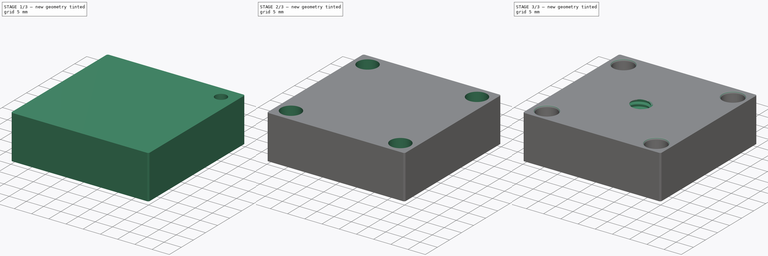
[diagram: build sequence overview — one tinted view per stage of 3, left to right]
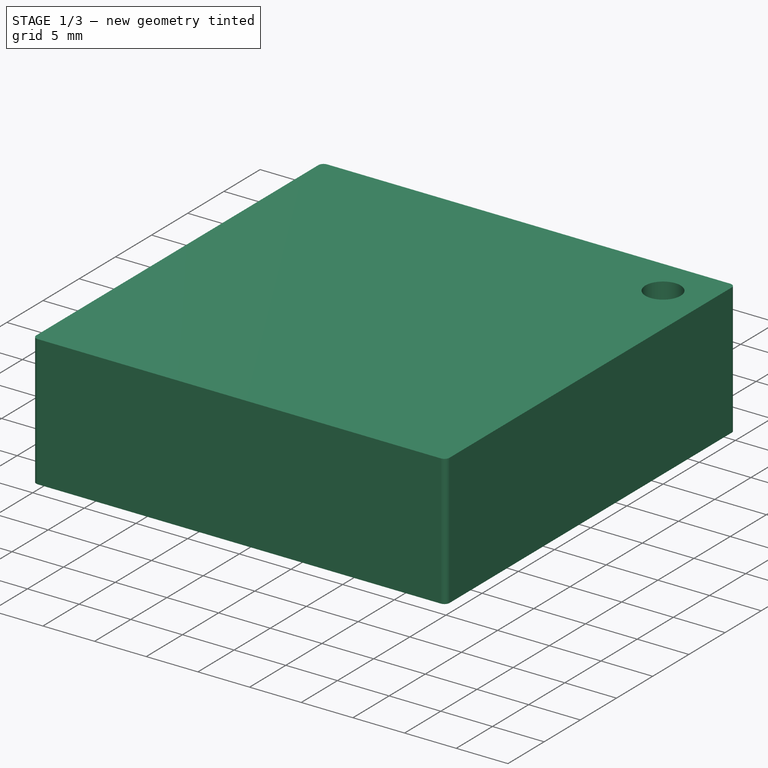
[diagram: stage 1 of 3 — iso view after this stage's code; geometry added in this stage tinted green]
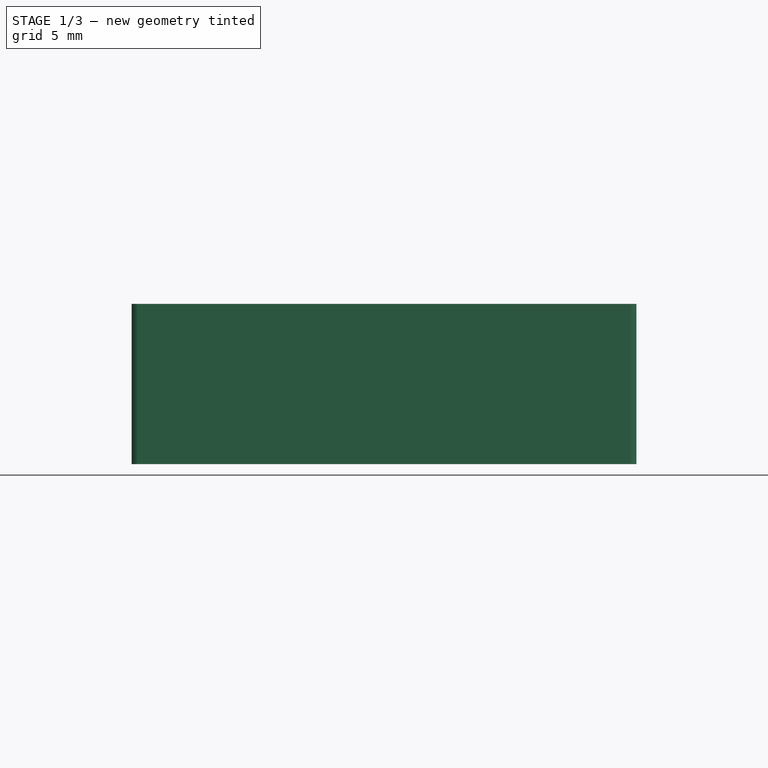
[diagram: stage 1 of 3 — front view after this stage's code; geometry added in this stage tinted green]
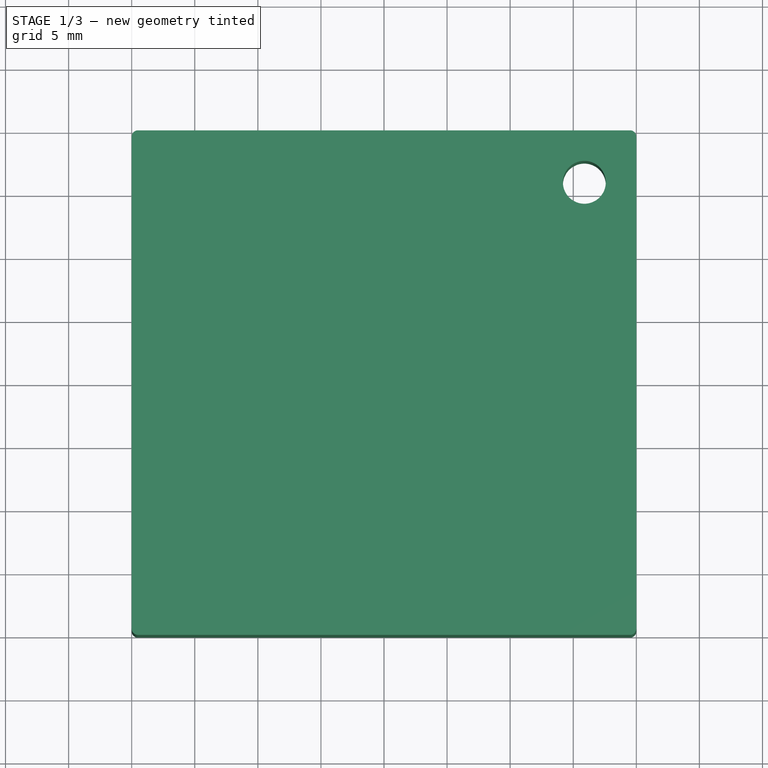
[diagram: stage 1 of 3 — top view after this stage's code; geometry added in this stage tinted green]
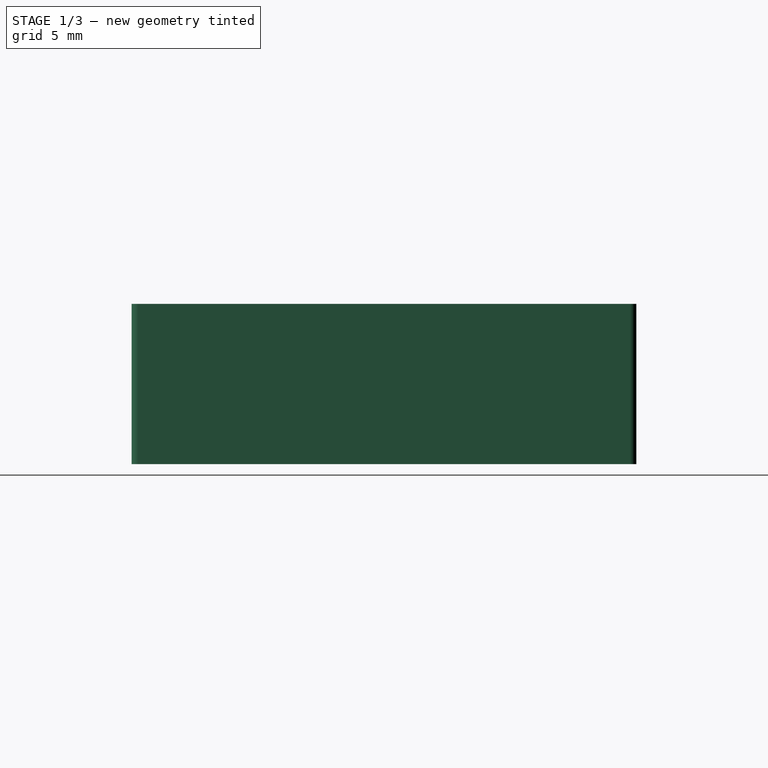
[diagram: stage 1 of 3 — right view after this stage's code; geometry added in this stage tinted green]
FCSTD DOCUMENT  (FreeCAD 1.1R44874 (Git))
Label: LD40_Adapter_Center
License: Creative Commons Attribution 4.0
objects: Sketcher::SketchObject×8, PartDesign::Pocket×4, TechDraw::DrawProjGroupItem×4, App::Point×2, PartDesign::Pad×2, PartDesign::PolarPattern×2, PartDesign::Fillet×2, PartDesign::Hole×2, PartDesign::Body×2, TechDraw::DrawSVGTemplate×1, TechDraw::DrawViewSection×1, TechDraw::DrawViewDimension×1, TechDraw::DrawProjGroup×1, TechDraw::DrawPage×1, PartDesign::LinearPattern×1
note: 56 computed .brp shape members not serialized (recipe doc carries the construction recipe); baked Part::Feature solids carry a one-line shape summary decoded from their .brp

FEATURE [App::Point] Origin001
  Role = Origin
FEATURE [Sketcher::SketchObject] Sketch
  ArcFitTolerance = 1e-06
  AttachmentSupport = -> [Origin]
  ExternalTypes = [0]
  FullyConstrained = true
  MakeInternals = false
  MapMode = 5
  _ExternalGeoVersion = 1
  sketch-geometry (10):
    g0: LineSegment StartX=-20 StartY=19.5 StartZ=0 EndX=-20 EndY=-19.5 EndZ=0
    g1: LineSegment StartX=-19.5 StartY=-20 StartZ=0 EndX=19.5 EndY=-20 EndZ=0
    g2: LineSegment StartX=20 StartY=-19.5 StartZ=0 EndX=20 EndY=19.5 EndZ=0
    g3: LineSegment StartX=19.5 StartY=20 StartZ=0 EndX=-19.5 EndY=20 EndZ=0
    g4: ArcOfCircle CenterX=-19.5 CenterY=19.5 CenterZ=0 NormalX=0 NormalY=0 NormalZ=1 AngleXU=0 Radius=0.5 StartAngle=1.5708 EndAngle=3.14159
    g5: ArcOfCircle CenterX=-19.5 CenterY=-19.5 CenterZ=0 NormalX=0 NormalY=0 NormalZ=1 AngleXU=0 Radius=0.5 StartAngle=3.14159 EndAngle=4.71239
    g6: ArcOfCircle CenterX=19.5 CenterY=-19.5 CenterZ=0 NormalX=0 NormalY=0 NormalZ=1 AngleXU=0 Radius=0.5 StartAngle=4.71239 EndAngle=6.28319
    g7: ArcOfCircle CenterX=19.5 CenterY=19.5 CenterZ=0 NormalX=0 NormalY=0 NormalZ=1 AngleXU=0 Radius=0.5 StartAngle=1.1e-15 EndAngle=1.5708
    g8: GeomPoint [constr] X=-20 Y=20 Z=0
    g9: GeomPoint [constr] X=20 Y=-20 Z=0
  constraints (22):
    c: Tangent(g0,g4) = -1.5708
    c: Tangent(g0,g5) = -1.5708
    c: Tangent(g1,g5) = -1.5708
    c: Tangent(g1,g6) = -1.5708
    c: Tangent(g2,g6) = -1.5708
    c: Tangent(g2,g7) = -1.5708
    c: Tangent(g3,g7) = -1.5708
    c: Tangent(g3,g4) = -1.5708
    c: Vertical(g0)
    c: Vertical(g2)
    c: Horizontal(g1)
    c: Horizontal(g3)
    c: Equal(g5,g6)
    c: PointOnObject(g8,g0)
    c: PointOnObject(g8,g3)
    c: PointOnObject(g9,g1)
    c: PointOnObject(g9,g2)
    c: DistanceX(g0,g2) = 40
    c: DistanceY(g1,g3) = 40
    c: Diameter(g7) = 1
    c: Symmetric(g3,g1,g-1)
    c: Symmetric(g0,g2,g-2)
FEATURE [PartDesign::Pad] Pad
  Direction = (0,0,1)
  Length = 12.7
  Length2 = 10
  Profile = -> Sketch
  ReferenceAxis = -> Sketch [N_Axis]
  Refine = true
  Reversed = true
  SideType = 0
  Suppressed = false
  Type = 0
  Type2 = 0
FEATURE [Sketcher::SketchObject] Sketch001
  ArcFitTolerance = 1e-06
  AttachmentSupport = -> [Origin]
  ExternalTypes = [0]
  FullyConstrained = true
  MakeInternals = false
  MapMode = 5
  _ExternalGeoVersion = 1
  sketch-geometry (1):
    g0: Circle CenterX=15.88 CenterY=15.88 CenterZ=0 NormalX=0 NormalY=0 NormalZ=1 AngleXU=0 Radius=1.7
  constraints (3):
    c: DistanceX(g0) = 15.88
    c: DistanceY(g0) = 15.88
    c: Diameter(g0) = 3.4
FEATURE [PartDesign::Pocket] Pocket
  BaseFeature = -> Pad
  Direction = (0,0,-1)
  Length = 5
  Length2 = 5
  Profile = -> Sketch001
  ReferenceAxis = -> Sketch001 [N_Axis]
  Refine = true
  SideType = 0
  Suppressed = false
  Type = 1
  Type2 = 0
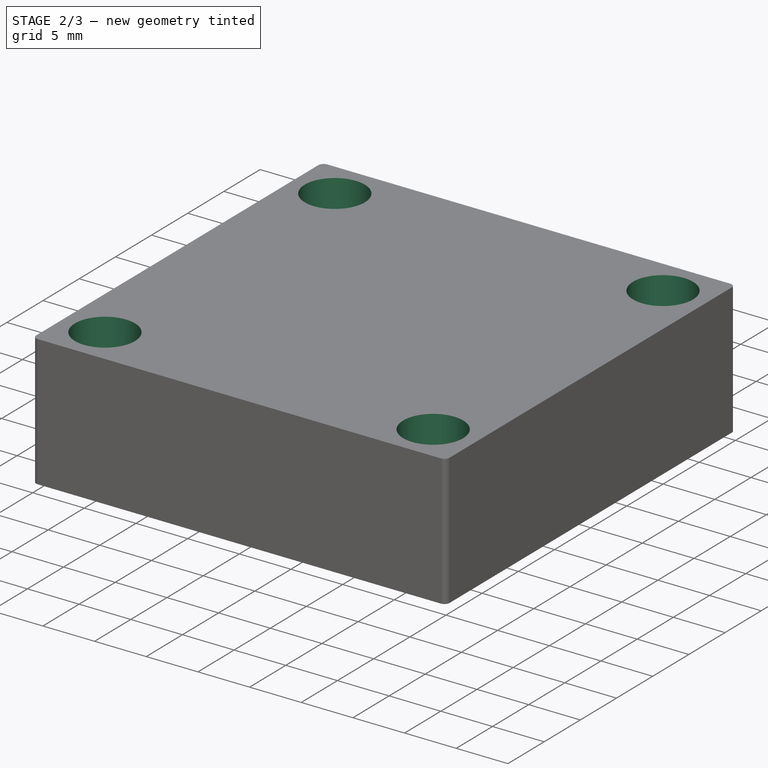
[diagram: stage 2 of 3 — iso view after this stage's code; geometry added in this stage tinted green]
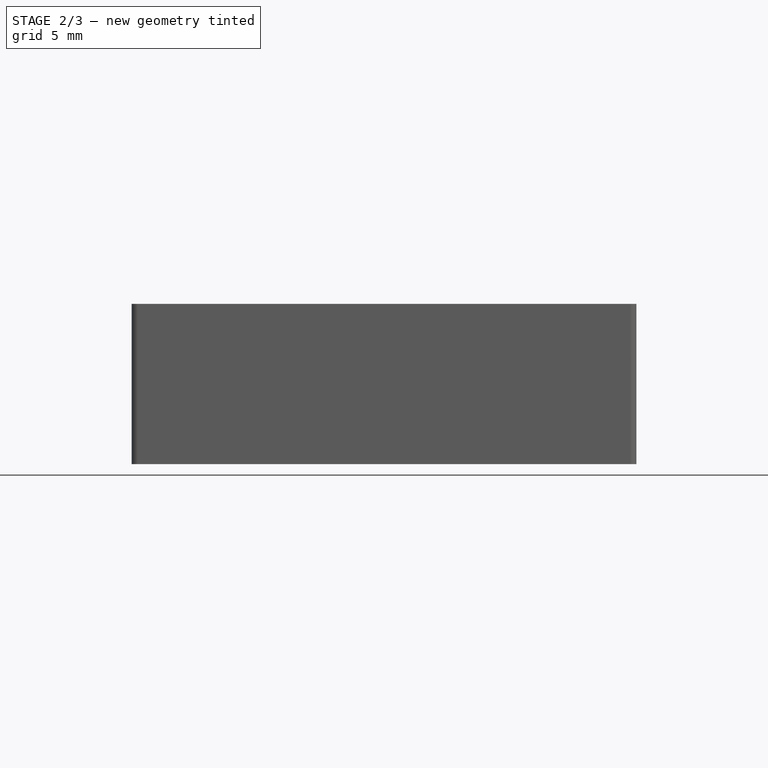
[diagram: stage 2 of 3 — front view after this stage's code; geometry added in this stage tinted green]
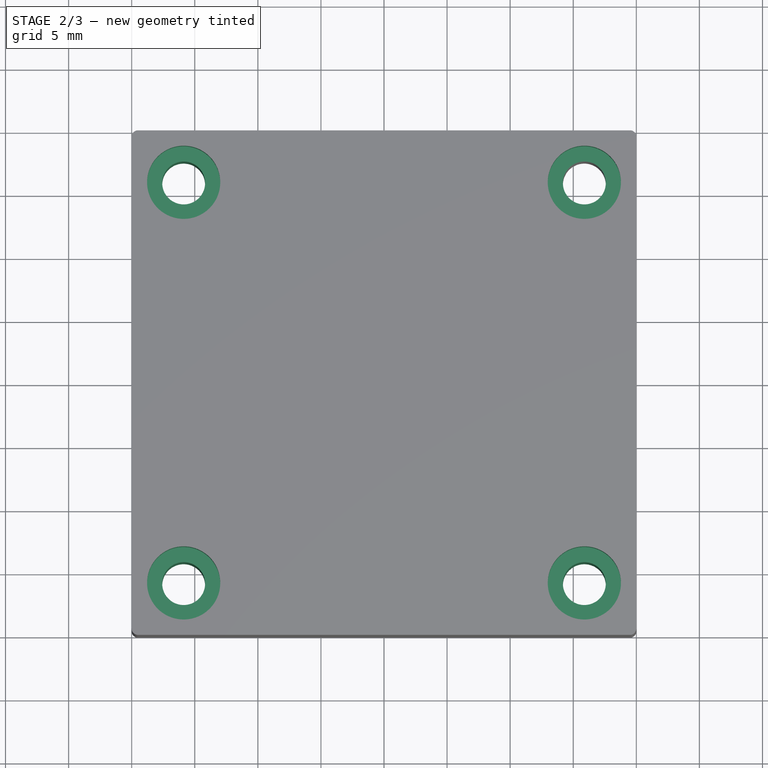
[diagram: stage 2 of 3 — top view after this stage's code; geometry added in this stage tinted green]
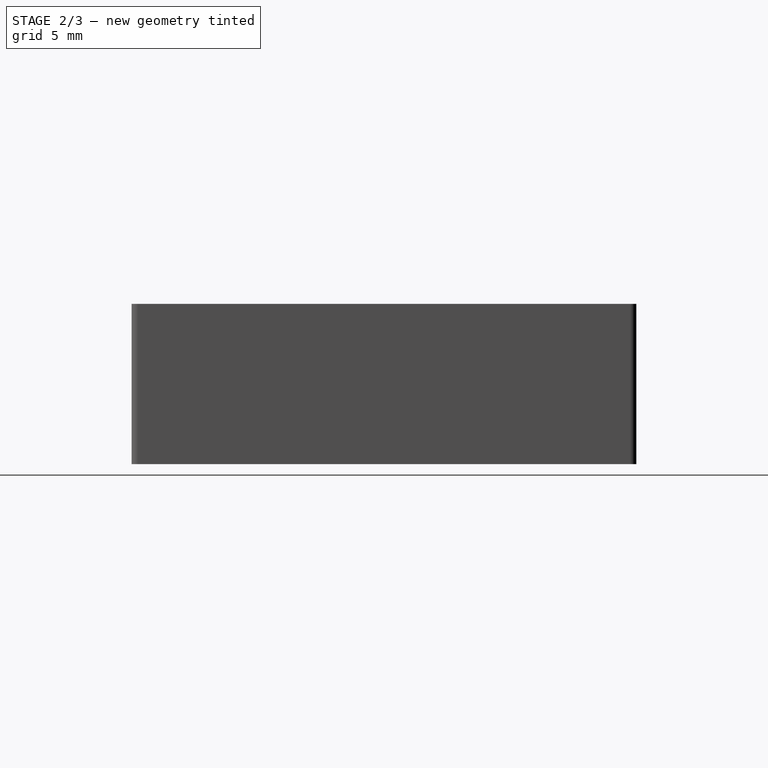
[diagram: stage 2 of 3 — right view after this stage's code; geometry added in this stage tinted green]
FEATURE [Sketcher::SketchObject] Sketch002
  ArcFitTolerance = 1e-06
  AttachmentSupport = -> [Origin]
  ExternalTypes = [0]
  FullyConstrained = true
  MakeInternals = false
  MapMode = 5
  _ExternalGeoVersion = 1
  sketch-geometry (1):
    g0: Circle CenterX=15.88 CenterY=15.88 CenterZ=0 NormalX=0 NormalY=0 NormalZ=1 AngleXU=0 Radius=2.9
  constraints (3):
    c: Diameter(g0) = 5.8
    c: DistanceX(g0) = 15.88
    c: DistanceY(g0) = 15.88
FEATURE [PartDesign::Pocket] Pocket001
  BaseFeature = -> Pocket
  Direction = (0,0,-1)
  Length = 3
  Length2 = 5
  Profile = -> Sketch002
  ReferenceAxis = -> Sketch002 [N_Axis]
  Refine = true
  SideType = 0
  Suppressed = false
  Type = 0
  Type2 = 0
FEATURE [PartDesign::PolarPattern] PolarPattern
  Angle = 360
  Axis = -> Sketch002 [N_Axis]
  BaseFeature = -> Pocket001
  Mode = 0
  Occurrences = 4
  Offset = 120
  Originals = -> [Pocket001,Pocket]
  Refine = true
  SpacingPattern = [0]
  Spacings = [-1,-1,-1]
  Suppressed = false
  TransformMode = 0
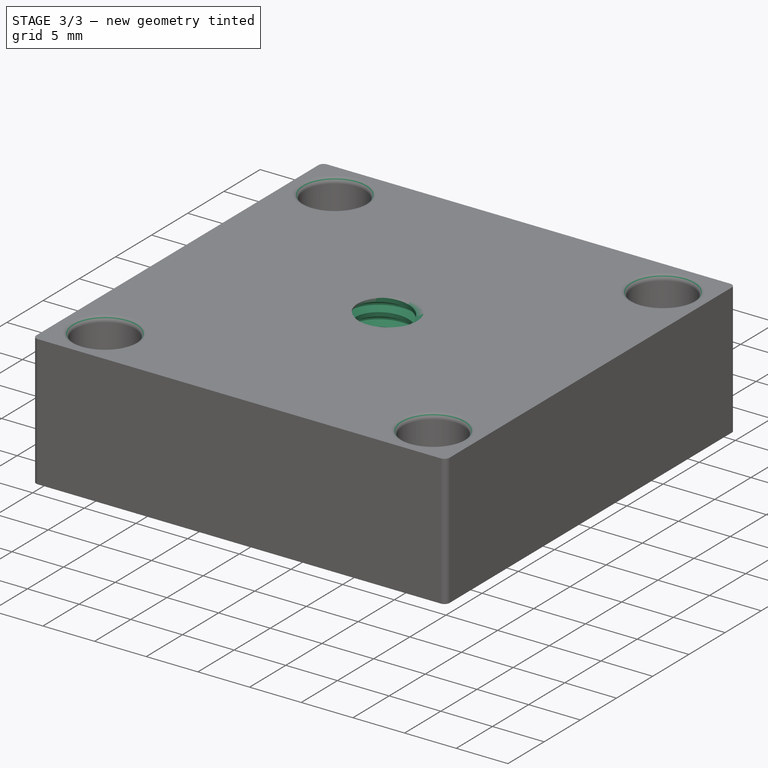
[diagram: stage 3 of 3 — iso view after this stage's code; geometry added in this stage tinted green]
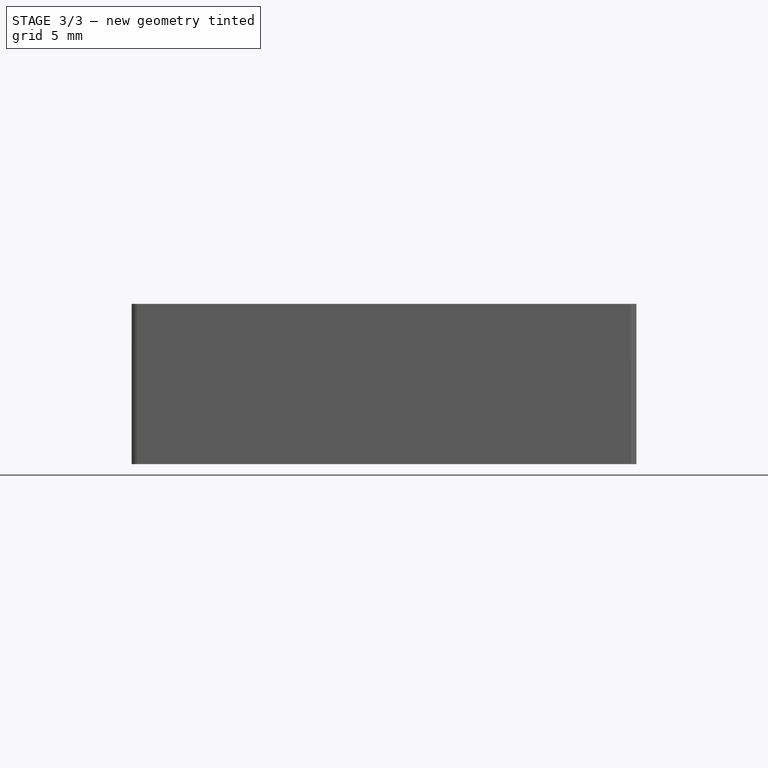
[diagram: stage 3 of 3 — front view after this stage's code; geometry added in this stage tinted green]
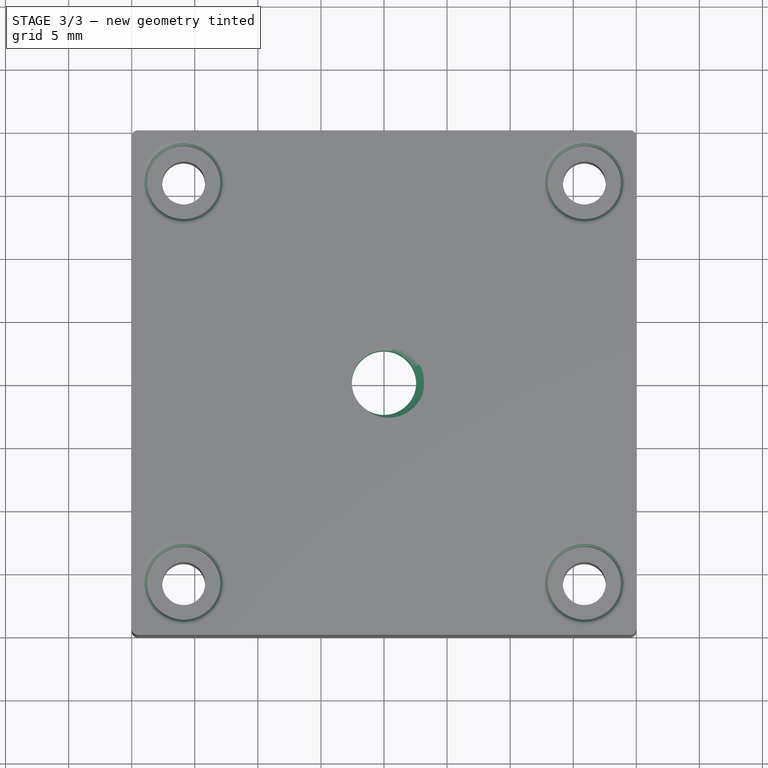
[diagram: stage 3 of 3 — top view after this stage's code; geometry added in this stage tinted green]
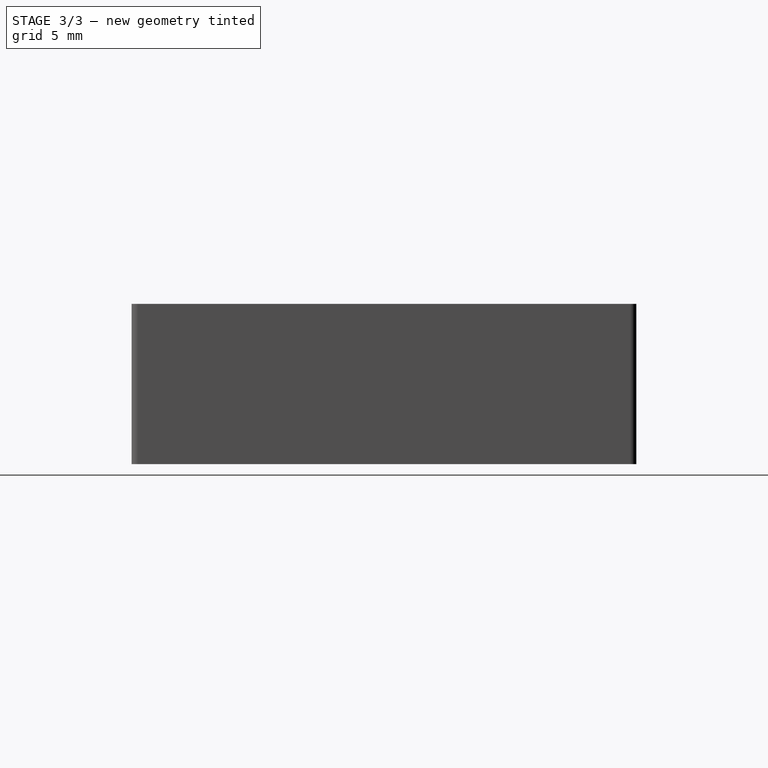
[diagram: stage 3 of 3 — right view after this stage's code; geometry added in this stage tinted green]
FEATURE [PartDesign::Fillet] Fillet
  Base = -> PolarPattern [Edge16,Edge18,Edge19,Edge17]
  BaseFeature = -> PolarPattern
  Radius = 0.5
  Refine = true
  SupportTransform = false
  Suppressed = false
  UseAllEdges = false
FEATURE [Sketcher::SketchObject] Sketch003
  ArcFitTolerance = 1e-06
  AttachmentSupport = -> [Fillet]
  ExternalTypes = [0]
  FullyConstrained = true
  MakeInternals = false
  MapMode = 5
  Placement = pos=(0,0,-12.7) rot=(1,0,0;3.14159rad)
  _ExternalGeoVersion = 1
  sketch-geometry (1):
    g0: Circle CenterX=0 CenterY=0 CenterZ=0 NormalX=0 NormalY=0 NormalZ=1 AngleXU=0 Radius=3.175
  constraints (2):
    c: Coincident(g0,g-1)
    c: Diameter(g0) = 6.35
FEATURE [PartDesign::Hole] Hole
  BaseFeature = -> Fillet
  BaseProfileType = 7
  CustomThreadClearance = 0
  Depth = 25
  DepthType = 0
  Diameter = 5.1
  DrillForDepth = false
  DrillPoint = 0
  DrillPointAngle = 118
  HoleCutCountersinkAngle = 90
  HoleCutCustomValues = false
  HoleCutDepth = 6.5
  HoleCutDiameter = 11.36
  HoleCutType = 1
  ModelThread = true
  Profile = -> Sketch003
  Refine = true
  Suppressed = false
  Tapered = false
  TaperedAngle = 90
  ThreadClass = 0
  ThreadDepth = 25
  ThreadDepthType = 0
  ThreadDiameter = 6.35
  ThreadDirection = 0
  ThreadFit = 0
  ThreadSize = 9
  ThreadType = 3
  Threaded = true
  UseCustomThreadClearance = false
FEATURE [PartDesign::Body] Body  label="Top"
  AllowCompound = false
  Group = -> [Sketch,Pad,Sketch001,Pocket,Sketch002,Pocket001,PolarPattern,Fillet,Sketch003,Hole]
  Origin = -> Origin
  Tip = -> Hole
FEATURE [TechDraw::DrawSVGTemplate] Template
  Height = 210
  Orientation = 1
  Template = <path>
  Width = 297
FEATURE [TechDraw::DrawProjGroupItem] View
  CoarseView = false
  Direction = (0,-1,0)
  Focus = 100
  HardHidden = false
  IsoCount = 0
  IsoHidden = false
  IsoVisible = false
  LockPosition = false
  Perspective = false
  Rotation = 0
  RotationVector = (1,0,0)
  ScaleType = 0
  ScrubCount = 1
  SeamHidden = false
  SeamVisible = false
  SmoothHidden = false
  SmoothVisible = true
  Source = -> [Body]
  Type = 0
  X = 151.263
  XDirection = (1,0,0)
  Y = 104.546
FEATURE [TechDraw::DrawViewSection] SectionView  label="Section  - "
  BaseView = -> View
  CoarseView = false
  CutSurfaceDisplay = 2
  Direction = (1,0,0)
  FileGeomPattern = <path>
  FileHatchPattern = <path>
  Focus = 100
  FuseBeforeCut = false
  HardHidden = false
  HatchOffset = (0,0,0)
  HatchRotation = 0
  HatchScale = 1
  IsoCount = 0
  IsoHidden = false
  IsoVisible = false
  LockPosition = false
  NameGeomPattern = Diamond
  Perspective = false
  Rotation = 90
  ScaleType = 0
  ScrubCount = 1
  SeamHidden = false
  SeamVisible = false
  SectionDirection = 4
  SectionLineStretch = 1
  SectionNormal = (1,0,0)
  SectionOrigin = (0,0,-6.35)
  SmoothHidden = false
  SmoothVisible = true
  Source = -> [Body]
  TrimAfterCut = false
  UsePreviousCut = false
  X = 151.475
  XDirection = (0,0,1)
  Y = 104.021
FEATURE [TechDraw::DrawViewDimension] Dimension001
  AngleOverride = true
  Arbitrary = true
  ArbitraryTolerances = false
  BoxCorners = (2) [(-20,-6.35071,-1e-07),(20,6.35,1e-07)]
  EqualTolerance = true
  ExtensionAngle = 90
  FormatSpec = 1/4"-20
  FormatSpecOverTolerance = %+.2w
  FormatSpecUnderTolerance = %+.2w
  Inverted = false
  LineAngle = 180
  LockPosition = false
  MeasureType = 1
  OverTolerance = 0
  References2D = -> [SectionView]
  Rotation = 0
  ScaleType = 0
  ShowUnits = false
  TheoreticalExact = false
  Type = 0
  UnderTolerance = 0
  UseActualArea = true
  X = -26.0119
  Y = 25.9763
FEATURE [TechDraw::DrawProjGroupItem] View001  label="Front"
  CoarseView = false
  Direction = (0,0,1)
  Focus = 100
  HardHidden = false
  IsoCount = 0
  IsoHidden = false
  IsoVisible = false
  LockPosition = true
  Perspective = false
  Rotation = 0
  RotationVector = (1,0,0)
  ScaleType = 2
  ScrubCount = 1
  SeamHidden = false
  SeamVisible = false
  SmoothHidden = false
  SmoothVisible = true
  Source = -> [Body]
  Type = 0
  X = 0
  XDirection = (1,0,0)
  Y = 0
FEATURE [TechDraw::DrawProjGroupItem] ProjItem  label="Left"
  CoarseView = false
  Direction = (-1,0,1e-16)
  Focus = 100
  HardHidden = false
  IsoCount = 0
  IsoHidden = false
  IsoVisible = false
  LockPosition = false
  Perspective = false
  Rotation = 0
  RotationVector = (1,0,0)
  ScaleType = 0
  ScrubCount = 1
  SeamHidden = false
  SeamVisible = false
  SmoothHidden = false
  SmoothVisible = true
  Source = -> [Body]
  Type = 1
  X = 68.6323
  XDirection = (1e-16,0,1)
  Y = 0
FEATURE [TechDraw::DrawProjGroupItem] ProjItem001  label="FrontTopLeft"
  CoarseView = false
  Direction = (-0.57735,0.57735,0.57735)
  Focus = 100
  HardHidden = false
  IsoCount = 0
  IsoHidden = false
  IsoVisible = false
  LockPosition = false
  Perspective = false
  Rotation = 0
  RotationVector = (1,0,0)
  ScaleType = 0
  ScrubCount = 1
  SeamHidden = false
  SeamVisible = false
  SmoothHidden = false
  SmoothVisible = true
  Source = -> [Body]
  Type = 6
  X = 68.6323
  XDirection = (0.707107,0,0.707107)
  Y = -76.9313
FEATURE [TechDraw::DrawProjGroup] ProjGroup
  Anchor = -> View001
  AutoDistribute = true
  LockPosition = false
  ProjectionType = 0
  Rotation = 0
  ScaleType = 0
  Source = -> [Body]
  Views = -> [View001,ProjItem,ProjItem001]
  X = 149.359
  Y = 179.325
  spacingX = 30
  spacingY = 30
FEATURE [TechDraw::DrawPage] Page
  KeepUpdated = true
  NextBalloonIndex = 1
  ProjectionType = 0
  Template = -> Template
  Views = -> [Dimension001,View,SectionView,ProjGroup]
FEATURE [App::Point] Origin003
  Role = Origin
FEATURE [Sketcher::SketchObject] Sketch004
  ArcFitTolerance = 1e-06
  AttachmentSupport = -> [Origin002]
  ExternalTypes = [0]
  FullyConstrained = true
  MakeInternals = false
  MapMode = 5
  _ExternalGeoVersion = 1
  sketch-geometry (10):
    g0: LineSegment StartX=-40 StartY=19.5 StartZ=0 EndX=-40 EndY=-19.5 EndZ=0
    g1: LineSegment StartX=-39.5 StartY=-20 StartZ=0 EndX=39.5 EndY=-20 EndZ=0
    g2: LineSegment StartX=40 StartY=-19.5 StartZ=0 EndX=40 EndY=19.5 EndZ=0
    g3: LineSegment StartX=39.5 StartY=20 StartZ=0 EndX=-39.5 EndY=20 EndZ=0
    g4: ArcOfCircle CenterX=-39.5 CenterY=19.5 CenterZ=0 NormalX=0 NormalY=0 NormalZ=1 AngleXU=0 Radius=0.5 StartAngle=1.5708 EndAngle=3.14159
    g5: ArcOfCircle CenterX=-39.5 CenterY=-19.5 CenterZ=0 NormalX=0 NormalY=0 NormalZ=1 AngleXU=0 Radius=0.5 StartAngle=3.14159 EndAngle=4.71239
    g6: ArcOfCircle CenterX=39.5 CenterY=-19.5 CenterZ=0 NormalX=0 NormalY=0 NormalZ=1 AngleXU=0 Radius=0.5 StartAngle=4.71239 EndAngle=6.28319
    g7: ArcOfCircle CenterX=39.5 CenterY=19.5 CenterZ=0 NormalX=0 NormalY=0 NormalZ=1 AngleXU=0 Radius=0.5 StartAngle=-6.057e-13 EndAngle=1.5708
    g8: GeomPoint [constr] X=-40 Y=20 Z=0
    g9: GeomPoint [constr] X=40 Y=-20 Z=0
  constraints (22):
    c: Tangent(g0,g4) = -1.5708
    c: Tangent(g0,g5) = -1.5708
    c: Tangent(g1,g5) = -1.5708
    c: Tangent(g1,g6) = -1.5708
    c: Tangent(g2,g6) = -1.5708
    c: Tangent(g2,g7) = -1.5708
    c: Tangent(g3,g7) = -1.5708
    c: Tangent(g3,g4) = -1.5708
    c: Vertical(g0)
    c: Vertical(g2)
    c: Horizontal(g1)
    c: Horizontal(g3)
    c: Equal(g5,g6)
    c: PointOnObject(g8,g0)
    c: PointOnObject(g8,g3)
    c: PointOnObject(g9,g1)
    c: PointOnObject(g9,g2)
    c: DistanceX(g0,g2) = 80
    c: DistanceY(g1,g3) = 40
    c: Diameter(g7) = 1
    c: Symmetric(g3,g1,g-1)
    c: Symmetric(g0,g2,g-2)
FEATURE [PartDesign::Pad] Pad001
  Direction = (0,0,1)
  Length = 12.7
  Length2 = 10
  Profile = -> Sketch004
  ReferenceAxis = -> Sketch004 [N_Axis]
  Refine = true
  Reversed = true
  SideType = 0
  Suppressed = false
  Type = 0
  Type2 = 0
FEATURE [Sketcher::SketchObject] Sketch005
  ArcFitTolerance = 1e-06
  AttachmentSupport = -> [Origin002]
  ExternalTypes = [0]
  FullyConstrained = true
  MakeInternals = false
  MapMode = 5
  _ExternalGeoVersion = 1
  sketch-geometry (1):
    g0: Circle CenterX=15.88 CenterY=15.88 CenterZ=0 NormalX=0 NormalY=0 NormalZ=1 AngleXU=0 Radius=1.7
  constraints (3):
    c: DistanceX(g0) = 15.88
    c: DistanceY(g0) = 15.88
    c: Diameter(g0) = 3.4
FEATURE [PartDesign::Pocket] Pocket002
  BaseFeature = -> Pad001
  Direction = (0,0,-1)
  Length = 5
  Length2 = 5
  Profile = -> Sketch005
  ReferenceAxis = -> Sketch005 [N_Axis]
  Refine = true
  SideType = 0
  Suppressed = false
  Type = 1
  Type2 = 0
FEATURE [Sketcher::SketchObject] Sketch006
  ArcFitTolerance = 1e-06
  AttachmentSupport = -> [Origin002]
  ExternalTypes = [0]
  FullyConstrained = true
  MakeInternals = false
  MapMode = 5
  _ExternalGeoVersion = 1
  sketch-geometry (1):
    g0: Circle CenterX=15.88 CenterY=15.88 CenterZ=0 NormalX=0 NormalY=0 NormalZ=1 AngleXU=0 Radius=2.9
  constraints (3):
    c: Diameter(g0) = 5.8
    c: DistanceX(g0) = 15.88
    c: DistanceY(g0) = 15.88
FEATURE [PartDesign::Pocket] Pocket003
  BaseFeature = -> Pocket002
  Direction = (0,0,-1)
  Length = 3
  Length2 = 5
  Profile = -> Sketch006
  ReferenceAxis = -> Sketch006 [N_Axis]
  Refine = true
  SideType = 0
  Suppressed = false
  Type = 0
  Type2 = 0
FEATURE [PartDesign::PolarPattern] PolarPattern001
  Angle = 360
  Axis = -> Sketch006 [N_Axis]
  BaseFeature = -> Pocket003
  Mode = 0
  Occurrences = 4
  Offset = 120
  Originals = -> [Pocket003,Pocket002]
  Refine = true
  SpacingPattern = [0]
  Spacings = [-1,-1,-1]
  Suppressed = false
  TransformMode = 0
FEATURE [PartDesign::Fillet] Fillet001
  Base = -> PolarPattern001 [Edge16,Edge18,Edge19,Edge17]
  BaseFeature = -> PolarPattern001
  Radius = 0.5
  Refine = true
  SupportTransform = false
  Suppressed = false
  UseAllEdges = false
FEATURE [Sketcher::SketchObject] Sketch007
  ArcFitTolerance = 1e-06
  AttachmentSupport = -> [Fillet001]
  ExternalTypes = [0]
  FullyConstrained = true
  MakeInternals = false
  MapMode = 5
  Placement = pos=(0,0,-12.7) rot=(1,0,0;3.14159rad)
  _ExternalGeoVersion = 1
  sketch-geometry (1):
    g0: Circle CenterX=-25.4 CenterY=0 CenterZ=0 NormalX=0 NormalY=0 NormalZ=1 AngleXU=0 Radius=3.175
  constraints (3):
    c: Diameter(g0) = 6.35
    c: DistanceX(g0) = -25.4
    c: PointOnObject(g0,g-1)
FEATURE [PartDesign::Hole] Hole001
  BaseFeature = -> Fillet001
  BaseProfileType = 7
  CustomThreadClearance = 0
  Depth = 25
  DepthType = 0
  Diameter = 7.1
  DrillForDepth = false
  DrillPoint = 0
  DrillPointAngle = 118
  HoleCutCountersinkAngle = 90
  HoleCutCustomValues = false
  HoleCutDepth = 6.5
  HoleCutDiameter = 11.36
  HoleCutType = 1
  ModelThread = false
  Profile = -> Sketch007
  Refine = true
  Suppressed = false
  Tapered = false
  TaperedAngle = 90
  ThreadClass = 0
  ThreadDepth = 25
  ThreadDepthType = 0
  ThreadDiameter = 6.35
  ThreadDirection = 0
  ThreadFit = 0
  ThreadSize = 9
  ThreadType = 3
  Threaded = false
  UseCustomThreadClearance = false
FEATURE [PartDesign::LinearPattern] LinearPattern
  BaseFeature = -> Hole001
  Direction = -> Sketch007 [H_Axis]
  Direction2 = -> Sketch007 [V_Axis]
  Length = 50.8
  Length2 = 25.4
  Mode = 1
  Mode2 = 0
  Occurrences = 3
  Occurrences2 = 1
  Offset = 25.4
  Offset2 = 25.4
  Originals = -> [Hole001]
  Refine = true
  Reversed2 = false
  SpacingPattern = [0]
  SpacingPattern2 = [0]
  Spacings = [-1,-1]
  Suppressed = false
  TransformMode = 0
FEATURE [PartDesign::Body] Body001  label="Bottom"
  AllowCompound = false
  Group = -> [Sketch004,Pad001,Sketch005,Pocket002,Sketch006,Pocket003,PolarPattern001,Fillet001,Sketch007,Hole001,LinearPattern]
  Origin = -> Origin002
  Tip = -> LinearPattern
note: 3 file-system paths scrubbed to <path> (originals preserved in the JSON sidecar)
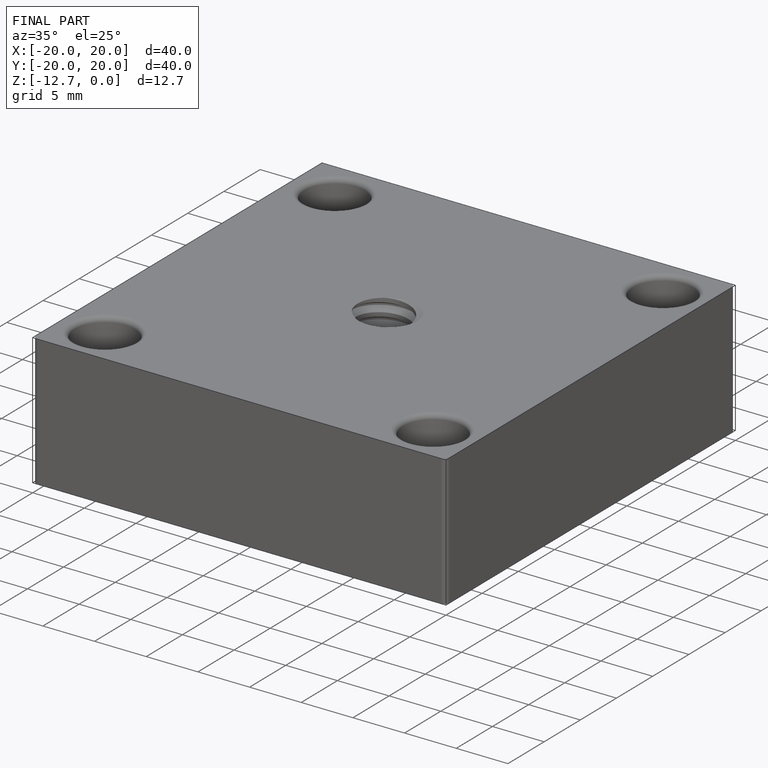
[diagram: finished part — iso view with bounding-box wireframe]
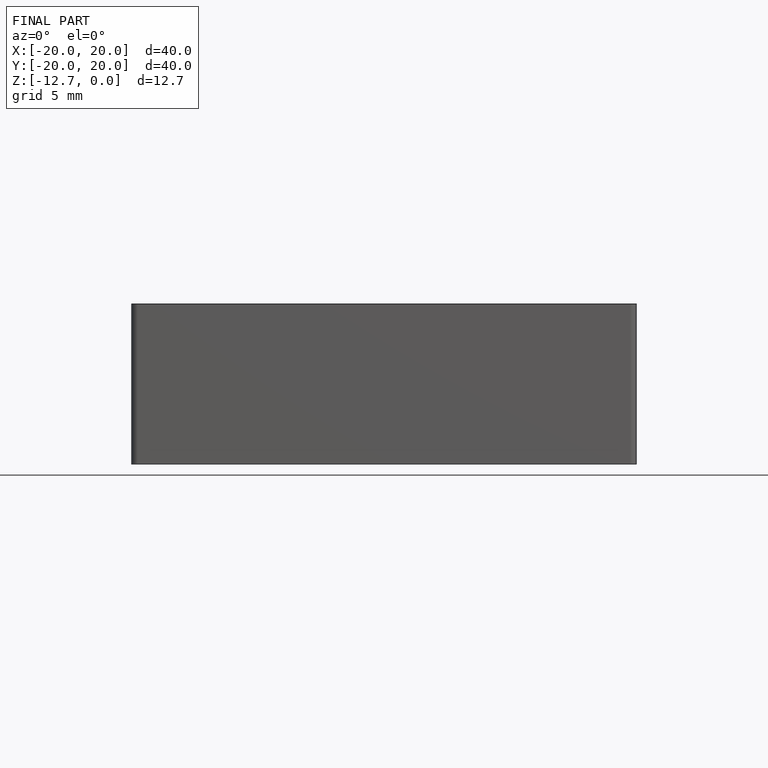
[diagram: finished part — front view with bounding-box wireframe]
